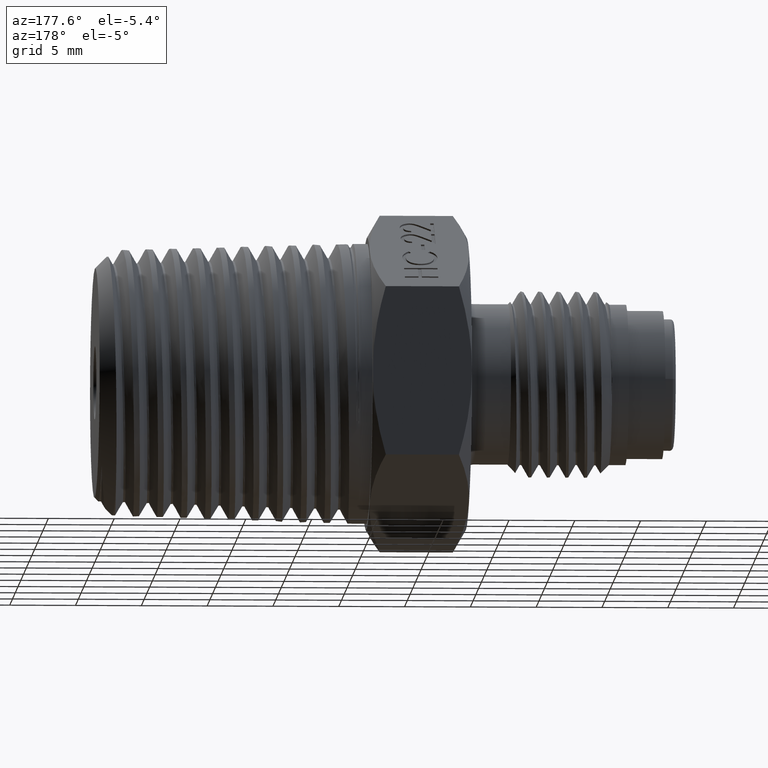
[diagram: clean part render]
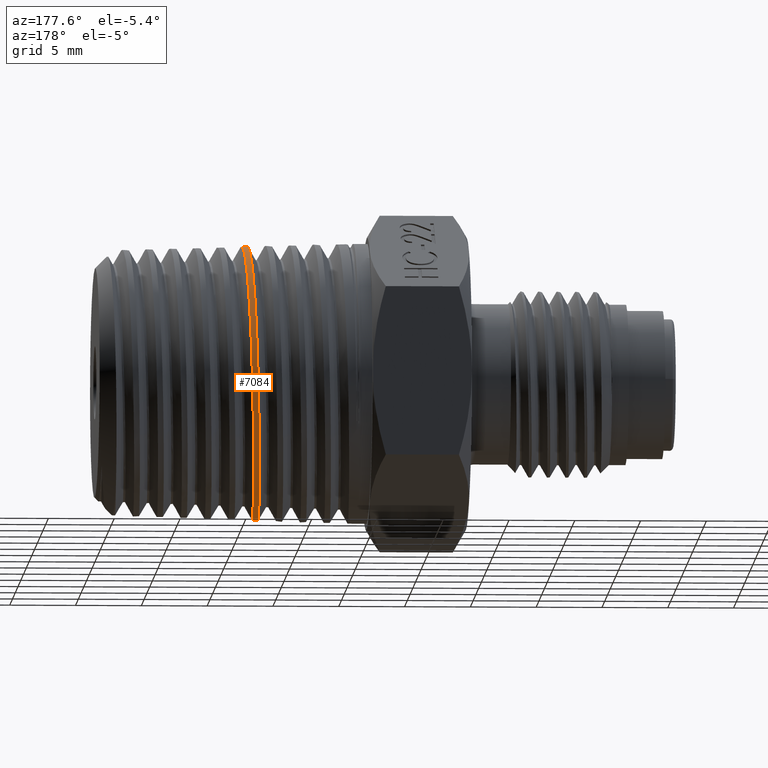
[diagram: same view with one face highlighted and labeled with its STEP entity id]
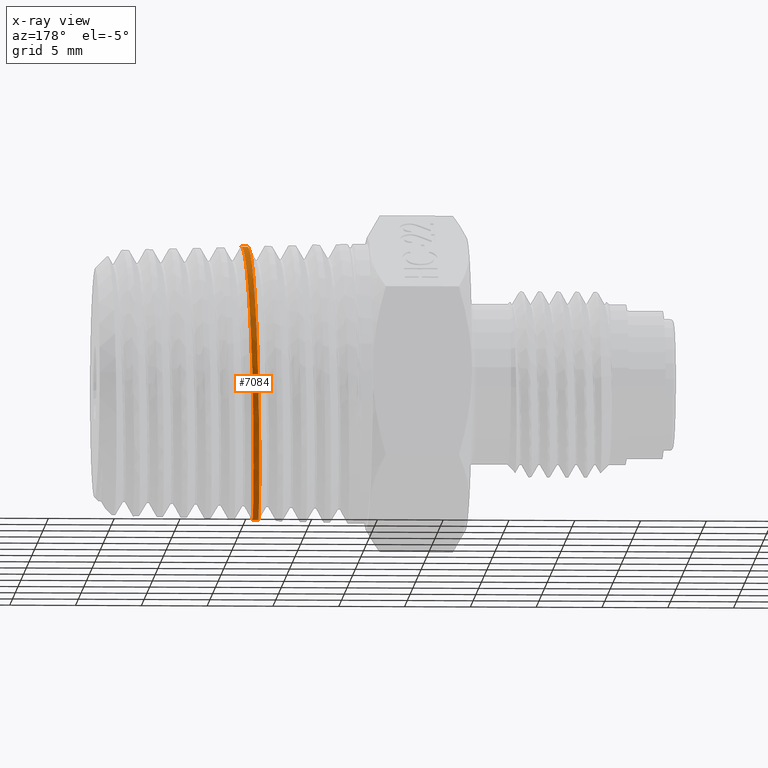
[diagram: x-ray of the same camera — body ghosted, the highlighted face saturated]
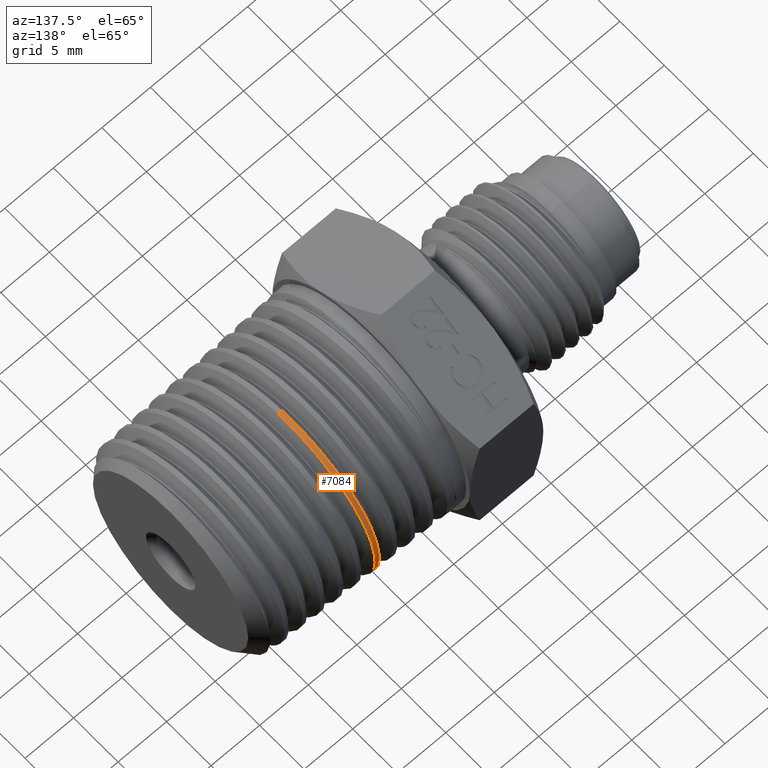
[diagram: same view with one face highlighted and labeled with its STEP entity id]
A machine part, auxiliary view. The second image highlights one B-rep face of the part: STEP entity #7084.
The next image is the same camera in x-ray: the body ghosted, the highlighted face saturated — about 0% of this face is hidden behind the body in this view.
A second angle (auxiliary view) of the same face is appended — the face is thin or edge-on in the first view.
In plain terms, the highlighted conical surface has half-angle 1.78 deg.
Its self-contained STEP definition (entity closure, byte-faithful):
#1 = CARTESIAN_POINT ( 'NONE',  ( -0.4395957184974548237, 0.1320009366090582614, 0.3884384252670313176 ) ) ;
#460 = CARTESIAN_POINT ( 'NONE',  ( -0.4582948993328033738, 0.1818041464600671508, 0.3684134926190737458 ) ) ;
#505 = CARTESIAN_POINT ( 'NONE',  ( -0.4872484998413388890, 0.05351246062026339401, -0.4075777684016269609 ) ) ;
#550 = CARTESIAN_POINT ( 'NONE',  ( -0.4857247540859229717, 0.1066095271030825797, -0.3976479832459535180 ) ) ;
#595 = CARTESIAN_POINT ( 'NONE',  ( -0.4627352967350862878, 0.3085843748277527498, 0.2704305690538432727 ) ) ;
#645 = CARTESIAN_POINT ( 'NONE',  ( -0.4779457933667824454, 0.3337777556021994108, -0.2394492517001036713 ) ) ;
#861 = CARTESIAN_POINT ( 'NONE',  ( -0.4663947601360812767, 0.1816659218052295299, -0.3687650032970328229 ) ) ;
#953 = CARTESIAN_POINT ( 'NONE',  ( -0.4552536422290039964, 0.4071878212218089654, -0.05394152306769144090 ) ) ;
#1003 = CARTESIAN_POINT ( 'NONE',  ( -0.4407332620093417086, 0.1692204142624741670, 0.3730432785950800190 ) ) ;
#1047 = CARTESIAN_POINT ( 'NONE',  ( -0.4485708742636038693, 0.3677781588799594603, 0.1809311611861022795 ) ) ;
#1327 = CARTESIAN_POINT ( 'NONE',  ( -0.4530636790355601629, -9.000062543845689587E-13, 0.4097932306740008634 ) ) ;
#1497 = CARTESIAN_POINT ( 'NONE',  ( -0.4567926299979587768, 0.1323018273582621529, 0.3888948439252459255 ) ) ;
#1589 = CARTESIAN_POINT ( 'NONE',  ( -0.4887466715639852688, -1.799178014577323735E-15, -0.4109021460111640378 ) ) ;
#1606 = ORIENTED_EDGE ( 'NONE', *, *, #12785, .F. ) ;
#1641 = CARTESIAN_POINT ( 'NONE',  ( -0.4560130312304750966, 0.1061389448157325083, 0.3968109760022092147 ) ) ;
#1685 = CARTESIAN_POINT ( 'NONE',  ( -0.4612246879054971993, 0.2707687359113709058, 0.3082262039225127648 ) ) ;
#2083 = CARTESIAN_POINT ( 'NONE',  ( -0.4374084832724036698, 0.05364146424476031599, 0.4060010731991397503 ) ) ;
#2184 = EDGE_LOOP ( 'NONE', ( #1606, #7188, #7834, #9048 ) ) ;
#2225 = CARTESIAN_POINT ( 'NONE',  ( -0.4887466715639852688, -1.799178014577323735E-15, -0.4109021460111640378 ) ) ;
#2734 = CARTESIAN_POINT ( 'NONE',  ( -0.4638573567583154089, 0.3337056954502120032, 0.2388068526551408444 ) ) ;
#2777 = CARTESIAN_POINT ( 'NONE',  ( -0.4790574955372820520, 0.3087433465757629114, -0.2710198721523701115 ) ) ;
#2983 = CARTESIAN_POINT ( 'NONE',  ( -0.4489416395917953384, 0.3735866761250295487, 0.1686391307858068345 ) ) ;
#3077 = CARTESIAN_POINT ( 'NONE',  ( -0.4575009693296422930, 0.3881861228971240085, -0.1324206088981846885 ) ) ;
#3121 = CARTESIAN_POINT ( 'NONE',  ( -0.4689836727554435591, 0.09292738389168717084, -0.3998489099936524127 ) ) ;
#3176 = CARTESIAN_POINT ( 'NONE',  ( -0.4362728931781606478, 0.01336577828828348913, 0.4092714257848658055 ) ) ;
#3227 = CARTESIAN_POINT ( 'NONE',  ( -0.4433684414658421447, 0.2500356963875960403, 0.3253907109393227026 ) ) ;
#3665 = CARTESIAN_POINT ( 'NONE',  ( -0.4656742860584326960, 0.3688289755365375955, 0.1814751000922428525 ) ) ;
#3715 = CARTESIAN_POINT ( 'NONE',  ( -0.4868626195890772834, 0.06697430848067181808, -0.4055717299836901213 ) ) ;
#3798 = CARTESIAN_POINT ( 'NONE',  ( -0.4671632219427560018, 0.3887330362235232317, 0.1317531533460303828 ) ) ;
#3838 = AXIS2_PLACEMENT_3D ( 'NONE', #12235, #6830, #12326 ) ;
#3850 = CARTESIAN_POINT ( 'NONE',  ( -0.4712402836374365855, 0.4103501058055605832, -0.01367820807561019418 ) ) ;
#3863 = LINE ( 'NONE', #5707, #5555 ) ;
#4017 = CARTESIAN_POINT ( 'NONE',  ( -0.4686218176126847879, 0.1059257924592446609, -0.3965958673140745350 ) ) ;
#4064 = EDGE_CURVE ( 'NONE', #9711, #9366, #3863, .T. ) ;
#4065 = CARTESIAN_POINT ( 'NONE',  ( -0.4656296126067622776, 0.2052039216037083447, -0.3561754630101670038 ) ) ;
#4149 = CARTESIAN_POINT ( 'NONE',  ( -0.4563853800501614377, 0.3993025051381478008, -0.09356254511390658946 ) ) ;
#4284 = CARTESIAN_POINT ( 'NONE',  ( -0.4478319965390668567, 0.3551022766729545754, 0.2046470618764813232 ) ) ;
#4577 = CARTESIAN_POINT ( 'NONE',  ( -0.4715760184544607880, 3.638906897810600537E-15, -0.4103685360408931282 ) ) ;
#4595 = CARTESIAN_POINT ( 'NONE',  ( -0.05388810761671526672, 3.876692262546568186E-17, -0.3973881076167147808 ) ) ;
#4727 = CARTESIAN_POINT ( 'NONE',  ( -0.4545162301033936481, 0.05353591489114378765, 0.4072102674934795496 ) ) ;
#4771 = CARTESIAN_POINT ( 'NONE',  ( -0.4683112562460668982, 0.3998740709935696414, 0.09273628255840422885 ) ) ;
#4823 = CARTESIAN_POINT ( 'NONE',  ( -0.4883828633154231880, 0.01336724208951489863, -0.4108908399934222966 ) ) ;
#4869 = CARTESIAN_POINT ( 'NONE',  ( -0.4701349124519820233, 0.4103395301451444044, 0.02663029220194914823 ) ) ;
#5180 = CARTESIAN_POINT ( 'NONE',  ( -0.4589509025988675051, 0.3677370609989753514, -0.1817402574863770104 ) ) ;
#5278 = CARTESIAN_POINT ( 'NONE',  ( -0.4715760184544607880, 3.638906897810600537E-15, -0.4103685360408931282 ) ) ;
#5555 = VECTOR ( 'NONE', #6823, 39.37007874015748854 ) ;
#5641 = CARTESIAN_POINT ( 'NONE',  ( -0.4537933703813193942, 0.02692450046773744651, 0.4098159071893234251 ) ) ;
#5707 = CARTESIAN_POINT ( 'NONE',  ( -0.05388810761671503080, -9.899084775737700313E-18, 0.3973881076167150583 ) ) ;
#5866 = CARTESIAN_POINT ( 'NONE',  ( -0.4723695727270948996, 0.4070341351100219551, -0.05410911301259246908 ) ) ;
#5916 = CARTESIAN_POINT ( 'NONE',  ( -0.4727467018310960167, 0.4050570035138316705, -0.06737896429911306717 ) ) ;
#6008 = CARTESIAN_POINT ( 'NONE',  ( -0.4794273837763532442, 0.2996035402767988631, -0.2811081599159780953 ) ) ;
#6165 = CARTESIAN_POINT ( 'NONE',  ( -0.4522968573762849442, 0.4071694362029294467, 0.05330041998288911204 ) ) ;
#6215 = CARTESIAN_POINT ( 'NONE',  ( -0.4678869802572688252, 0.1317131626377284204, -0.3887691606477911566 ) ) ;
#6238 = VERTEX_POINT ( 'NONE', #2225 ) ;
#6262 = CARTESIAN_POINT ( 'NONE',  ( -0.4582279706225211857, 0.3791591874295470177, -0.1575880424435102123 ) ) ;
#6354 = CARTESIAN_POINT ( 'NONE',  ( -0.4630516992282241451, 0.2803195214632818733, -0.2996405929754160091 ) ) ;
#6438 = B_SPLINE_CURVE_WITH_KNOTS ( 'NONE', 3,
 ( #1327, #5641, #4727, #1641, #1497, #460, #7086, #13338, #9173, #1685, #11194, #9125, #595, #10250, #2734, #12248, #3665, #10199, #3798, #11240, #4771, #6941, #4869, #3850, #12394, #5866, #5916, #7973, #13479, #8991, #9039, #645, #10107, #2777, #6008, #12295, #7036, #8115, #10062, #6984, #550, #3715, #505, #12340, #4823, #1589 ),
 .UNSPECIFIED., .F., .F.,
 ( 4, 2, 2, 2, 2, 2, 2, 2, 2, 2, 2, 2, 2, 2, 2, 2, 2, 2, 2, 2, 2, 2, 4 ),
 ( 0.3587000162956477944, 0.3607383789127475704, 0.3627767415298472908, 0.3648151041469470668, 0.3658342854554969548, 0.3668534667640467872, 0.3678726480725966752, 0.3688918293811465632, 0.3709301919982463391, 0.3719493733067961716, 0.3729685546153460596, 0.3750069172324458355, 0.3760260985409956680, 0.3770452798495455560, 0.3790836424666453319, 0.3811220050837450524, 0.3821411863922949403, 0.3831603677008448283, 0.3851987303179445488, 0.3872370929350443247, 0.3892754555521440452, 0.3902946368606939331, 0.3913138181692438211 ),
 .UNSPECIFIED. ) ;
#6445 = CARTESIAN_POINT ( 'NONE',  ( -0.4418808055870289686, 0.2052465169927856770, 0.3545431546308734361 ) ) ;
#6469 = EDGE_CURVE ( 'NONE', #9366, #6238, #6438, .T. ) ;
#6489 = CARTESIAN_POINT ( 'NONE',  ( -0.4377821946400713427, 0.06702616539243928806, 0.4040154840690101667 ) ) ;
#6721 = DIRECTION ( 'NONE',  ( -0.9995174638954169577, -1.798043982487783698E-16, -0.03106186356408728935 ) ) ;
#6823 = DIRECTION ( 'NONE',  ( -0.9995174638954169577, -1.836083794277095021E-16, 0.03106186356408789997 ) ) ;
#6830 = DIRECTION ( 'NONE',  ( -1.000000000000000000, -1.836970198721021306E-16, 3.053134055134053237E-16 ) ) ;
#6941 = CARTESIAN_POINT ( 'NONE',  ( -0.4694229809816947707, 0.4077185305887138234, 0.05323427457608034125 ) ) ;
#6984 = CARTESIAN_POINT ( 'NONE',  ( -0.4849921856776180928, 0.1321917389484620342, -0.3898564684808692449 ) ) ;
#7036 = CARTESIAN_POINT ( 'NONE',  ( -0.4812744108221276296, 0.2503522635222671378, -0.3266370662375701062 ) ) ;
#7084 = ADVANCED_FACE ( 'NONE', ( #12669 ), #13006, .T. ) ;
#7086 = CARTESIAN_POINT ( 'NONE',  ( -0.4590085732858800172, 0.2054083622403091725, 0.3558322852425515048 ) ) ;
#7188 = ORIENTED_EDGE ( 'NONE', *, *, #8502, .T. ) ;
#7200 = CARTESIAN_POINT ( 'NONE',  ( -0.4600707024254536148, 0.3481452126916452783, -0.2169932551737953907 ) ) ;
#7248 = CARTESIAN_POINT ( 'NONE',  ( -0.4508033478760574142, 0.3967257683451130834, 0.1058230301018976277 ) ) ;
#7294 = CARTESIAN_POINT ( 'NONE',  ( -0.4567625032303453403, 0.3959950050873340399, -0.1067371770039266671 ) ) ;
#7387 = CARTESIAN_POINT ( 'NONE',  ( -0.4530389301757169473, 0.4098319762673497402, 0.02613457948195804445 ) ) ;
#7834 = ORIENTED_EDGE ( 'NONE', *, *, #6469, .F. ) ;
#7935 = LINE ( 'NONE', #4595, #10955 ) ;
#7973 = CARTESIAN_POINT ( 'NONE',  ( -0.4738718810080607691, 0.3972210678081760649, -0.1067330375581882762 ) ) ;
#8115 = CARTESIAN_POINT ( 'NONE',  ( -0.4827824722431092175, 0.2058037028747512209, -0.3564426457798310910 ) ) ;
#8318 = CARTESIAN_POINT ( 'NONE',  ( -0.4700707144726687381, 0.05362665093785731751, -0.4076785952167998883 ) ) ;
#8493 = CARTESIAN_POINT ( 'NONE',  ( -0.4411196203270270622, 0.1815053008139368151, 0.3672375749983861071 ) ) ;
#8502 = EDGE_CURVE ( 'NONE', #11956, #6238, #7935, .T. ) ;
#8991 = CARTESIAN_POINT ( 'NONE',  ( -0.4760744667007471564, 0.3687628562800508991, -0.1823834403378724323 ) ) ;
#9039 = CARTESIAN_POINT ( 'NONE',  ( -0.4768227615721320478, 0.3560522324544828643, -0.2061013428178050944 ) ) ;
#9048 = ORIENTED_EDGE ( 'NONE', *, *, #4064, .F. ) ;
#9125 = CARTESIAN_POINT ( 'NONE',  ( -0.4623534676492783713, 0.2995951386741073086, 0.2803365820103659312 ) ) ;
#9173 = CARTESIAN_POINT ( 'NONE',  ( -0.4604802219404439123, 0.2499863801274444797, 0.3252797841939806811 ) ) ;
#9366 = VERTEX_POINT ( 'NONE', #11262 ) ;
#9377 = CARTESIAN_POINT ( 'NONE',  ( -0.4500504664400433730, 0.3889937832646443994, 0.1313779175539211419 ) ) ;
#9423 = CARTESIAN_POINT ( 'NONE',  ( -0.4645109590403023736, 0.2386496211093589725, -0.3338386859772999316 ) ) ;
#9461 = CARTESIAN_POINT ( 'NONE',  ( -0.4619592142638319632, 0.3086606679987390911, -0.2712929561326919981 ) ) ;
#9514 = CARTESIAN_POINT ( 'NONE',  ( -0.4708120386920595091, 0.02702223903316339215, -0.4103447939493308771 ) ) ;
#9564 = CARTESIAN_POINT ( 'NONE',  ( -0.4366525697355489455, 0.02676677620276375277, 0.4086301359149969170 ) ) ;
#9711 = VERTEX_POINT ( 'NONE', #12886 ) ;
#10062 = CARTESIAN_POINT ( 'NONE',  ( -0.4835366705120391351, 0.1817001360382959618, -0.3693380869685168322 ) ) ;
#10107 = CARTESIAN_POINT ( 'NONE',  ( -0.4783189072481958126, 0.3258052695055432268, -0.2502125156558022701 ) ) ;
#10199 = CARTESIAN_POINT ( 'NONE',  ( -0.4667870541806145579, 0.3842006099323354018, 0.1443923411676749924 ) ) ;
#10250 = CARTESIAN_POINT ( 'NONE',  ( -0.4634878606589498684, 0.3256222478226205030, 0.2496924975418905734 ) ) ;
#10548 = CARTESIAN_POINT ( 'NONE',  ( -0.4641433602997045993, 0.2495395396723009418, -0.3257679636059652162 ) ) ;
#10601 = CARTESIAN_POINT ( 'NONE',  ( -0.4675141177076014287, 0.1444914047214758135, -0.3841887092166597628 ) ) ;
#10645 = CARTESIAN_POINT ( 'NONE',  ( -0.4358929334185339677, -1.461965527859390815E-15, 0.4092596178288875897 ) ) ;
#10693 = CARTESIAN_POINT ( 'NONE',  ( -0.4463448559374695312, 0.3259727220703294015, 0.2494276241852767528 ) ) ;
#10955 = VECTOR ( 'NONE', #6721, 39.37007874015748854 ) ;
#11194 = CARTESIAN_POINT ( 'NONE',  ( -0.4615992567586376105, 0.2806873198821771553, 0.2992344430741707972 ) ) ;
#11240 = CARTESIAN_POINT ( 'NONE',  ( -0.4679257218863148160, 0.3965809291517737867, 0.1059021993831513603 ) ) ;
#11262 = CARTESIAN_POINT ( 'NONE',  ( -0.4530636790355601629, -9.000062543845689587E-13, 0.4097932306740008634 ) ) ;
#11502 = CARTESIAN_POINT ( 'NONE',  ( -0.4545026393690312916, 0.4097975190470402596, -0.02735948326416592913 ) ) ;
#11602 = CARTESIAN_POINT ( 'NONE',  ( -0.4612165612315777818, 0.3256391391563844273, -0.2506510969930491051 ) ) ;
#11787 = CARTESIAN_POINT ( 'NONE',  ( -0.4455830053450109962, 0.3089954530084894624, 0.2701739200265886320 ) ) ;
#11835 = CARTESIAN_POINT ( 'NONE',  ( -0.4422563073338031114, 0.2167284356148709012, 0.3476527786556121158 ) ) ;
#11956 = VERTEX_POINT ( 'NONE', #4577 ) ;
#12235 = CARTESIAN_POINT ( 'NONE',  ( -0.05388810761671514876, -9.899084775737700313E-18, 1.198591983551632204E-16 ) ) ;
#12248 = CARTESIAN_POINT ( 'NONE',  ( -0.4649569412472306373, 0.3562324480620026046, 0.2050919941509960764 ) ) ;
#12295 = CARTESIAN_POINT ( 'NONE',  ( -0.4805332384161375980, 0.2710274617730181745, -0.3096783824966913290 ) ) ;
#12326 = DIRECTION ( 'NONE',  ( 3.007597545875435086E-16, 0.000000000000000000, 1.000000000000000000 ) ) ;
#12340 = CARTESIAN_POINT ( 'NONE',  ( -0.4880076556013346889, 0.02674303944756251453, -0.4102284937566330059 ) ) ;
#12394 = CARTESIAN_POINT ( 'NONE',  ( -0.4716162907999864595, 0.4096857164859851741, -0.02725771817413842613 ) ) ;
#12669 = FACE_OUTER_BOUND ( 'NONE', #2184, .T. ) ;
#12785 = EDGE_CURVE ( 'NONE', #11956, #9711, #13021, .T. ) ;
#12798 = CARTESIAN_POINT ( 'NONE',  ( -0.4634131588536276047, 0.2703901342680678499, -0.3086507893932695090 ) ) ;
#12883 = CARTESIAN_POINT ( 'NONE',  ( -0.4440821630062902758, 0.2707336691517034377, 0.3084432112680930427 ) ) ;
#12886 = CARTESIAN_POINT ( 'NONE',  ( -0.4358929334185339677, -1.461965527859390815E-15, 0.4092596178288875897 ) ) ;
#12936 = CARTESIAN_POINT ( 'NONE',  ( -0.4474624154645684415, 0.3482197571008396331, 0.2161228704912992460 ) ) ;
#13006 = CONICAL_SURFACE ( 'NONE', #3838, 0.3973881076167148918, 0.03106686068549926322 ) ;
#13021 = B_SPLINE_CURVE_WITH_KNOTS ( 'NONE', 3,
 ( #5278, #9514, #8318, #3121, #4017, #6215, #10601, #861, #4065, #9423, #10548, #12798, #6354, #9461, #11602, #7200, #13731, #5180, #6262, #3077, #7294, #4149, #953, #11502, #7387, #6165, #7248, #9377, #2983, #1047, #4284, #12936, #10693, #11787, #12883, #3227, #11835, #6445, #8493, #1003, #1, #13871, #6489, #2083, #9564, #3176, #10645 ),
 .UNSPECIFIED., .F., .F.,
 ( 4, 2, 2, 2, 2, 2, 2, 2, 2, 1, 2, 2, 2, 2, 2, 2, 2, 2, 2, 2, 2, 2, 2, 4 ),
 ( 0.3183125022025732886, 0.3203486957254968459, 0.3213667924869585968, 0.3223848892484203477, 0.3244210827713439049, 0.3254391795328057113, 0.3264572762942674622, 0.3284934698171910195, 0.3295115665786527703, 0.3305296633401145767, 0.3315477601015763276, 0.3325658568630380785, 0.3346020503859616357, 0.3366382439088851930, 0.3386744374318086948, 0.3396925341932705011, 0.3407106309547322520, 0.3427468244776558093, 0.3447830180005793665, 0.3458011147620411174, 0.3468192115235028683, 0.3488554050464264256, 0.3498735018078882320, 0.3508915985693499828 ),
 .UNSPECIFIED. ) ;
#13338 = CARTESIAN_POINT ( 'NONE',  ( -0.4601083079017741495, 0.2390580473255541072, 0.3333812149834343708 ) ) ;
#13479 = CARTESIAN_POINT ( 'NONE',  ( -0.4745915945218653342, 0.3894753001228152822, -0.1323666169390079195 ) ) ;
#13731 = CARTESIAN_POINT ( 'NONE',  ( -0.4596881502432479949, 0.3551035311713102716, -0.2053785190974526942 ) ) ;
#13871 = CARTESIAN_POINT ( 'NONE',  ( -0.4388822325848132921, 0.1064502558075853256, 0.3961766229881502621 ) ) ;